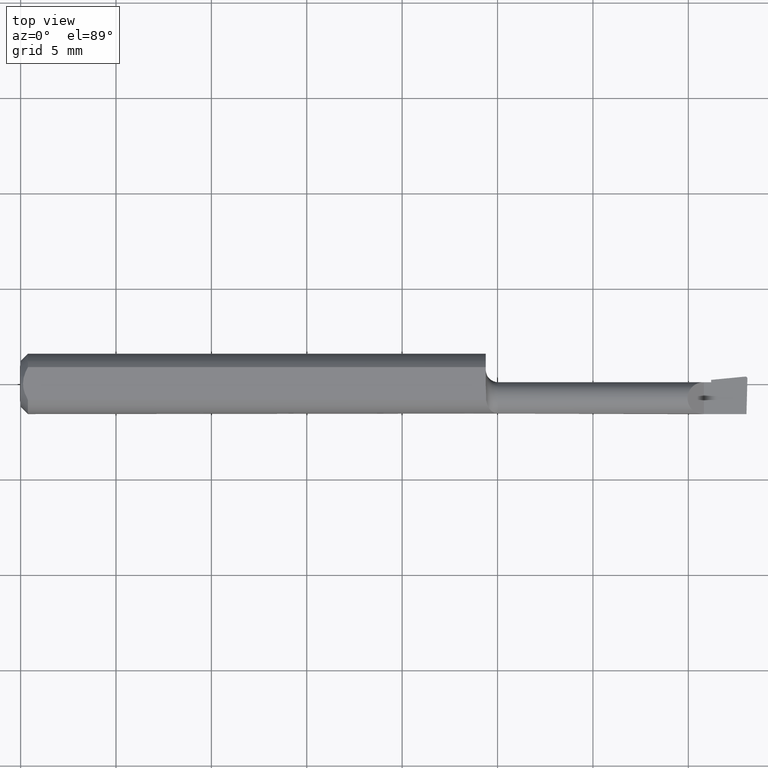
[diagram: clean part render]
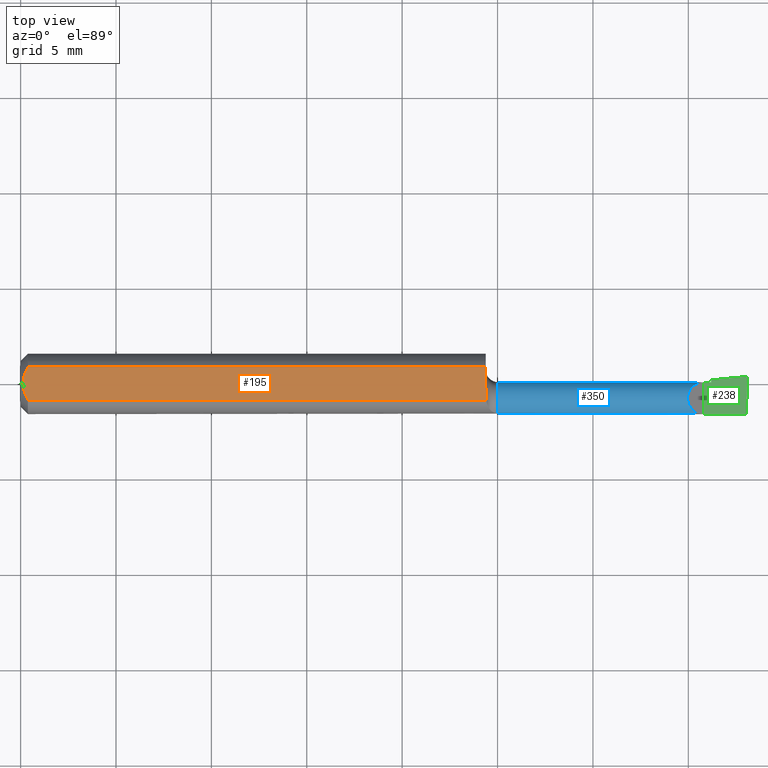
[diagram: same view with three faces highlighted in distinct colors, each labeled with its STEP entity id]
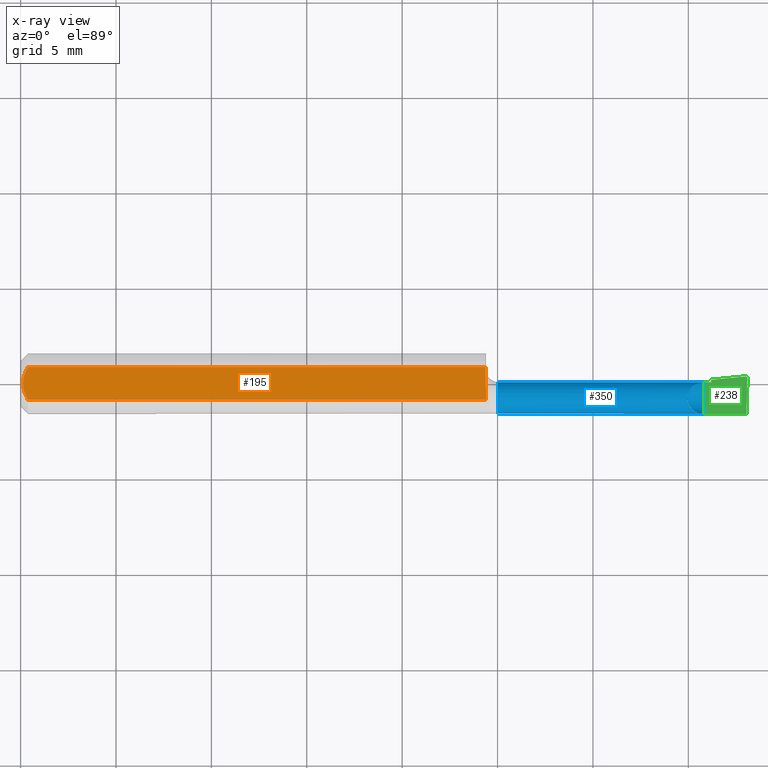
[diagram: x-ray of the same camera — body ghosted, the three highlighted faces saturated]
A machine part, top view with three faces highlighted in distinct colors.
The next image is the same camera in x-ray (body ghosted, the three faces saturated) — at least one of them is partly hidden behind the body in this view.
Their STEP definitions:

[orange] entity #195 — the highlighted planar face has unit normal (0, -0, -1).
#4 = ORIENTED_EDGE ( 'NONE', *, *, #272, .F. ) ;
#10 = VECTOR ( 'NONE', #125, 39.37007874015748143 ) ;
#25 = EDGE_CURVE ( 'NONE', #404, #233, #113, .T. ) ;
#26 = CARTESIAN_POINT ( 'NONE',  ( 0.9600000000000001865, -0.003555718954753302706, 0.05235000000000000070 ) ) ;
#27 = ORIENTED_EDGE ( 'NONE', *, *, #329, .F. ) ;
#37 = CARTESIAN_POINT ( 'NONE',  ( 0.9600000000000002975, -0.008611455327202432314, 0.05235000000000000070 ) ) ;
#38 = CARTESIAN_POINT ( 'NONE',  ( 0.9600000000000001865, 0.1123499999999999915, 0.05234999999999998682 ) ) ;
#49 = CARTESIAN_POINT ( 'NONE',  ( 0.006057557792978140489, -0.01187252718384441616, 0.05234999999999998682 ) ) ;
#75 = CARTESIAN_POINT ( 'NONE',  ( 0.0000000000000000000, 0.03386738844375223462, 0.05234999999999997988 ) ) ;
#113 = B_SPLINE_CURVE_WITH_KNOTS ( 'NONE', 3,
 ( #145, #237, #215, #49, #115, #345 ),
 .UNSPECIFIED., .F., .F.,
 ( 4, 2, 4 ),
 ( 0.002133667072902290657, 0.002585433046183636171, 0.003037199019464981685 ),
 .UNSPECIFIED. ) ;
#115 = CARTESIAN_POINT ( 'NONE',  ( 0.004999999999998879473, -0.005957634400466955450, 0.05235000000000000070 ) ) ;
#118 = EDGE_CURVE ( 'NONE', #583, #342, #186, .T. ) ;
#125 = DIRECTION ( 'NONE',  ( 1.000000000000000000, 0.0000000000000000000, 0.0000000000000000000 ) ) ;
#145 = CARTESIAN_POINT ( 'NONE',  ( 0.01500000000000185213, -0.03386738844380016850, 0.05235000000000000070 ) ) ;
#148 = CARTESIAN_POINT ( 'NONE',  ( 0.9607464907415638189, -0.02375524936241534685, 0.05234999999999997988 ) ) ;
#186 = B_SPLINE_CURVE_WITH_KNOTS ( 'NONE', 3,
 ( #26, #37, #493, #148, #247, #205 ),
 .UNSPECIFIED., .F., .F.,
 ( 4, 2, 4 ),
 ( 2.951825381264387685E-05, 0.0004145759864934283213, 0.0007996337191742129182 ),
 .UNSPECIFIED. ) ;
#195 = ADVANCED_FACE ( 'NONE', ( #383 ), #245, .F. ) ;
#205 = CARTESIAN_POINT ( 'NONE',  ( 0.9607701187518842278, -0.03386738844373782947, 0.05235000000000000070 ) ) ;
#206 = CARTESIAN_POINT ( 'NONE',  ( 1.500000000000000222, 0.1123499999999999915, 0.05234999999999998682 ) ) ;
#215 = CARTESIAN_POINT ( 'NONE',  ( 0.009678036133109307534, -0.02325481837211496039, 0.05235000000000000070 ) ) ;
#228 = ORIENTED_EDGE ( 'NONE', *, *, #460, .F. ) ;
#233 = VERTEX_POINT ( 'NONE', #435 ) ;
#237 = CARTESIAN_POINT ( 'NONE',  ( 0.01216137397042175820, -0.02864146636719541034, 0.05235000000000000070 ) ) ;
#245 = PLANE ( 'NONE',  #651 ) ;
#246 = VERTEX_POINT ( 'NONE', #307 ) ;
#247 = CARTESIAN_POINT ( 'NONE',  ( 0.9608648707886662255, -0.02880649294741972899, 0.05234999999999998682 ) ) ;
#252 = CARTESIAN_POINT ( 'NONE',  ( 0.0000000000000000000, -0.03386738844375222768, 0.05234999999999997988 ) ) ;
#256 = DIRECTION ( 'NONE',  ( 0.0000000000000000000, -7.598598113218357399E-17, -1.000000000000000000 ) ) ;
#257 = EDGE_CURVE ( 'NONE', #540, #583, #643, .T. ) ;
#272 = EDGE_CURVE ( 'NONE', #233, #246, #598, .T. ) ;
#282 = CARTESIAN_POINT ( 'NONE',  ( 0.01500000000000185213, -0.03386738844380016850, 0.05235000000000000070 ) ) ;
#289 = CARTESIAN_POINT ( 'NONE',  ( 0.006064493299689842180, 0.01189382783781397189, 0.05235000000000000070 ) ) ;
#298 = CARTESIAN_POINT ( 'NONE',  ( 0.004999999999999268051, 0.005945714695019511074, 0.05235000000000000070 ) ) ;
#307 = CARTESIAN_POINT ( 'NONE',  ( 0.01500000000000000465, 0.03386738844375223462, 0.05234999999999997988 ) ) ;
#318 = ORIENTED_EDGE ( 'NONE', *, *, #118, .F. ) ;
#327 = VECTOR ( 'NONE', #479, 39.37007874015748143 ) ;
#328 = VECTOR ( 'NONE', #522, 39.37007874015748143 ) ;
#329 = EDGE_CURVE ( 'NONE', #342, #404, #443, .T. ) ;
#330 = EDGE_LOOP ( 'NONE', ( #318, #455, #228, #4, #376, #27 ) ) ;
#341 = CARTESIAN_POINT ( 'NONE',  ( 0.009669996313769784607, 0.02323004575534281385, 0.05234999999999998682 ) ) ;
#342 = VERTEX_POINT ( 'NONE', #632 ) ;
#345 = CARTESIAN_POINT ( 'NONE',  ( 0.004999999999989931769, 7.898418181085889318E-16, 0.05235000000000000070 ) ) ;
#348 = LINE ( 'NONE', #75, #10 ) ;
#356 = CARTESIAN_POINT ( 'NONE',  ( 0.004999999999989931769, 7.898418181085889318E-16, 0.05235000000000000070 ) ) ;
#376 = ORIENTED_EDGE ( 'NONE', *, *, #25, .F. ) ;
#383 = FACE_OUTER_BOUND ( 'NONE', #330, .T. ) ;
#404 = VERTEX_POINT ( 'NONE', #282 ) ;
#415 = DIRECTION ( 'NONE',  ( 0.0000000000000000000, 1.000000000000000000, -7.598598113218357399E-17 ) ) ;
#435 = CARTESIAN_POINT ( 'NONE',  ( 0.004999999999989931769, 7.898418181085889318E-16, 0.05235000000000000070 ) ) ;
#443 = LINE ( 'NONE', #252, #327 ) ;
#455 = ORIENTED_EDGE ( 'NONE', *, *, #257, .F. ) ;
#460 = EDGE_CURVE ( 'NONE', #246, #540, #348, .T. ) ;
#479 = DIRECTION ( 'NONE',  ( -1.000000000000000000, -0.0000000000000000000, -0.0000000000000000000 ) ) ;
#493 = CARTESIAN_POINT ( 'NONE',  ( 0.9603031604743114125, -0.01365768250280467201, 0.05235000000000000764 ) ) ;
#505 = CARTESIAN_POINT ( 'NONE',  ( 0.9600000000000001865, 0.03386738844375224156, 0.05235000000000000070 ) ) ;
#522 = DIRECTION ( 'NONE',  ( -2.845674993400274571E-18, -1.000000000000000000, 7.598598113218357399E-17 ) ) ;
#540 = VERTEX_POINT ( 'NONE', #505 ) ;
#583 = VERTEX_POINT ( 'NONE', #619 ) ;
#597 = CARTESIAN_POINT ( 'NONE',  ( 0.01500000000000000465, 0.03386738844375223462, 0.05234999999999997988 ) ) ;
#598 = B_SPLINE_CURVE_WITH_KNOTS ( 'NONE', 3,
 ( #356, #298, #289, #341, #604, #597 ),
 .UNSPECIFIED., .F., .F.,
 ( 4, 2, 4 ),
 ( 0.003037199019464981685, 0.003488061124369676216, 0.003938923229274370746 ),
 .UNSPECIFIED. ) ;
#604 = CARTESIAN_POINT ( 'NONE',  ( 0.01218518006020415795, 0.02868529347538067639, 0.05235000000000000070 ) ) ;
#619 = CARTESIAN_POINT ( 'NONE',  ( 0.9600000000000001865, -0.003555718954753302706, 0.05235000000000000070 ) ) ;
#632 = CARTESIAN_POINT ( 'NONE',  ( 0.9607701187518842278, -0.03386738844373782947, 0.05235000000000000070 ) ) ;
#643 = LINE ( 'NONE', #38, #328 ) ;
#651 = AXIS2_PLACEMENT_3D ( 'NONE', #206, #256, #415 ) ;

[blue] entity #350 — the highlighted cylindrical surface (edge-blend (fillet) strip) has radius 0.8547 mm, axis along (-1, 0, -0).
#5 = CARTESIAN_POINT ( 'NONE',  ( 1.422586135878207481, -0.004617293032568454622, -0.02209164292227925458 ) ) ;
#11 = EDGE_CURVE ( 'NONE', #474, #414, #535, .T. ) ;
#17 = DIRECTION ( 'NONE',  ( 1.000000000000000000, -2.845674993400274571E-18, 0.0000000000000000000 ) ) ;
#43 = VERTEX_POINT ( 'NONE', #596 ) ;
#45 = EDGE_CURVE ( 'NONE', #43, #269, #500, .T. ) ;
#72 = CIRCLE ( 'NONE', #227, 0.03364999999999995078 ) ;
#73 = VERTEX_POINT ( 'NONE', #629 ) ;
#88 = CARTESIAN_POINT ( 'NONE',  ( 1.205000000000000071, -0.06092000000000005744, 0.01327690099383115746 ) ) ;
#97 = CARTESIAN_POINT ( 'NONE',  ( 0.9850000000000000977, -0.02999999999999999889, 0.0000000000000000000 ) ) ;
#100 = CARTESIAN_POINT ( 'NONE',  ( 1.422808130611181499, -0.006922796484203239294, -0.02449010367251407486 ) ) ;
#109 = CARTESIAN_POINT ( 'NONE',  ( 1.422734132366858306, -0.006115384616088397930, -0.02372927357351927585 ) ) ;
#120 = ORIENTED_EDGE ( 'NONE', *, *, #151, .T. ) ;
#121 = CARTESIAN_POINT ( 'NONE',  ( 1.396723099006168756, -0.06092000000000005744, 0.01327690099383110368 ) ) ;
#127 = EDGE_CURVE ( 'NONE', #412, #414, #72, .T. ) ;
#139 = DIRECTION ( 'NONE',  ( -2.845674993400274571E-18, -1.000000000000000000, 0.0000000000000000000 ) ) ;
#143 = CARTESIAN_POINT ( 'NONE',  ( 0.0000000000000000000, -0.02999999999999999542, 0.0000000000000000000 ) ) ;
#149 = CARTESIAN_POINT ( 'NONE',  ( 1.425000000000000266, -0.02999999999999999889, -0.03365000000000000629 ) ) ;
#151 = EDGE_CURVE ( 'NONE', #43, #269, #244, .T. ) ;
#159 = FACE_OUTER_BOUND ( 'NONE', #612, .T. ) ;
#168 = EDGE_CURVE ( 'NONE', #412, #601, #324, .T. ) ;
#176 = CARTESIAN_POINT ( 'NONE',  ( 1.496364186706980792, -0.06092000000000005744, -0.01327690099383115746 ) ) ;
#177 = ORIENTED_EDGE ( 'NONE', *, *, #372, .T. ) ;
#178 = EDGE_LOOP ( 'NONE', ( #588, #120 ) ) ;
#187 = CARTESIAN_POINT ( 'NONE',  ( 1.423528013792283220, -0.006115055335901219483, -0.02372896329039452662 ) ) ;
#202 = ORIENTED_EDGE ( 'NONE', *, *, #481, .F. ) ;
#226 = CARTESIAN_POINT ( 'NONE',  ( 0.9850000000000000977, -0.06092000000000009907, -0.01327690099383098052 ) ) ;
#227 = AXIS2_PLACEMENT_3D ( 'NONE', #97, #309, #346 ) ;
#236 = ORIENTED_EDGE ( 'NONE', *, *, #127, .F. ) ;
#240 = CYLINDRICAL_SURFACE ( 'NONE', #419, 0.03364999999999997160 ) ;
#244 = B_SPLINE_CURVE_WITH_KNOTS ( 'NONE', 3,
 ( #5, #423, #109, #100 ),
 .UNSPECIFIED., .F., .F.,
 ( 4, 4 ),
 ( 0.0000000000000000000, 1.000000000000000000 ),
 .UNSPECIFIED. ) ;
#254 = CARTESIAN_POINT ( 'NONE',  ( 1.363008094618844313, 0.003649999999999966639, 0.04699190538115514959 ) ) ;
#262 = DIRECTION ( 'NONE',  ( 0.0000000000000000000, -1.000000000000000000, 0.0000000000000000000 ) ) ;
#264 = LINE ( 'NONE', #532, #463 ) ;
#269 = VERTEX_POINT ( 'NONE', #489 ) ;
#271 =( BOUNDED_CURVE ( )  B_SPLINE_CURVE ( 3, ( #176, #566, #512, #333 ),
 .UNSPECIFIED., .F., .T. ) 
 B_SPLINE_CURVE_WITH_KNOTS ( ( 4, 4 ),
 ( 5.328025986651551804, 6.493234751460239096 ),
 .UNSPECIFIED. ) 
 CURVE ( )  GEOMETRIC_REPRESENTATION_ITEM ( )  RATIONAL_B_SPLINE_CURVE ( ( 1.000000000000000000, 0.8900217005663142444, 0.8900217005663142444, 1.000000000000000000 ) ) 
 REPRESENTATION_ITEM ( '' )  );
#280 = VERTEX_POINT ( 'NONE', #149 ) ;
#285 = VERTEX_POINT ( 'NONE', #316 ) ;
#291 = CARTESIAN_POINT ( 'NONE',  ( 1.409999999999999920, 0.003649999999999905057, 1.102182119232617911E-17 ) ) ;
#308 = LINE ( 'NONE', #504, #608 ) ;
#309 = DIRECTION ( 'NONE',  ( -1.000000000000000000, 2.845674993400274571E-18, -0.0000000000000000000 ) ) ;
#314 =( BOUNDED_CURVE ( )  B_SPLINE_CURVE ( 3, ( #121, #626, #254, #291 ),
 .UNSPECIFIED., .F., .T. ) 
 B_SPLINE_CURVE_WITH_KNOTS ( ( 4, 4 ),
 ( 5.117976542370897164, 7.853981633974482790 ),
 .UNSPECIFIED. ) 
 CURVE ( )  GEOMETRIC_REPRESENTATION_ITEM ( )  RATIONAL_B_SPLINE_CURVE ( ( 1.000000000000000000, 0.4676044288551151062, 0.4676044288551151062, 1.000000000000000000 ) ) 
 REPRESENTATION_ITEM ( '' )  );
#316 = CARTESIAN_POINT ( 'NONE',  ( 1.409999999999999920, 0.003649999999999905057, 1.102182119232617911E-17 ) ) ;
#324 = LINE ( 'NONE', #88, #582 ) ;
#333 = CARTESIAN_POINT ( 'NONE',  ( 1.494671495890090407, -0.02999999999999999889, -0.03365000000000000629 ) ) ;
#344 = ORIENTED_EDGE ( 'NONE', *, *, #168, .T. ) ;
#346 = DIRECTION ( 'NONE',  ( 0.0000000000000000000, -1.000000000000000000, 0.0000000000000000000 ) ) ;
#350 = ADVANCED_FACE ( 'NONE', ( #159, #451 ), #240, .T. ) ;
#372 = EDGE_CURVE ( 'NONE', #73, #280, #559, .T. ) ;
#378 = ORIENTED_EDGE ( 'NONE', *, *, #11, .T. ) ;
#382 = CARTESIAN_POINT ( 'NONE',  ( 0.9850000000000000977, -0.06092000000000009213, 0.01327690099383100134 ) ) ;
#384 = AXIS2_PLACEMENT_3D ( 'NONE', #454, #390, #262 ) ;
#390 = DIRECTION ( 'NONE',  ( -1.000000000000000000, 2.845674993400274571E-18, -0.0000000000000000000 ) ) ;
#407 = CARTESIAN_POINT ( 'NONE',  ( 1.422808130611181499, -0.006922796484203239294, -0.02449010367251407486 ) ) ;
#412 = VERTEX_POINT ( 'NONE', #382 ) ;
#414 = VERTEX_POINT ( 'NONE', #226 ) ;
#419 = AXIS2_PLACEMENT_3D ( 'NONE', #143, #551, #139 ) ;
#423 = CARTESIAN_POINT ( 'NONE',  ( 1.422660134122533782, -0.005345630279323979397, -0.02292848294241291857 ) ) ;
#451 = FACE_BOUND ( 'NONE', #178, .T. ) ;
#454 = CARTESIAN_POINT ( 'NONE',  ( 1.425000000000000266, -0.02999999999999999889, 0.0000000000000000000 ) ) ;
#462 = EDGE_CURVE ( 'NONE', #285, #73, #264, .T. ) ;
#463 = VECTOR ( 'NONE', #17, 39.37007874015748143 ) ;
#474 = VERTEX_POINT ( 'NONE', #558 ) ;
#476 = CARTESIAN_POINT ( 'NONE',  ( 1.422586135878207481, -0.004617293032568454622, -0.02209164292227925458 ) ) ;
#481 = EDGE_CURVE ( 'NONE', #474, #627, #271, .T. ) ;
#489 = CARTESIAN_POINT ( 'NONE',  ( 1.422808130611181499, -0.006922796484203239294, -0.02449010367251407486 ) ) ;
#498 = VECTOR ( 'NONE', #514, 39.37007874015748143 ) ;
#500 =( BOUNDED_CURVE ( )  B_SPLINE_CURVE ( 3, ( #476, #537, #187, #407 ),
 .UNSPECIFIED., .F., .T. ) 
 B_SPLINE_CURVE_WITH_KNOTS ( ( 4, 4 ),
 ( 3.087527693676615836, 3.186434404596850900 ),
 .UNSPECIFIED. ) 
 CURVE ( )  GEOMETRIC_REPRESENTATION_ITEM ( )  RATIONAL_B_SPLINE_CURVE ( ( 1.000000000000000000, 0.9991849546734640208, 0.9991849546734640208, 1.000000000000000000 ) ) 
 REPRESENTATION_ITEM ( '' )  );
#502 = ORIENTED_EDGE ( 'NONE', *, *, #593, .F. ) ;
#504 = CARTESIAN_POINT ( 'NONE',  ( 1.500000000000000222, -0.02999999999999999889, -0.03365000000000000629 ) ) ;
#512 = CARTESIAN_POINT ( 'NONE',  ( 1.494308349198229857, -0.04386801266094341595, -0.03364999999999997160 ) ) ;
#514 = DIRECTION ( 'NONE',  ( -1.000000000000000000, 2.845674993400274571E-18, -0.0000000000000000000 ) ) ;
#516 = CARTESIAN_POINT ( 'NONE',  ( 1.494671495890090407, -0.02999999999999999889, -0.03365000000000000629 ) ) ;
#518 = CARTESIAN_POINT ( 'NONE',  ( 1.205000000000000071, -0.06092000000000005744, -0.01327690099383115746 ) ) ;
#532 = CARTESIAN_POINT ( 'NONE',  ( 9.575696352794162704E-20, 0.003649999999999969241, 1.836970198721026976E-16 ) ) ;
#535 = LINE ( 'NONE', #518, #498 ) ;
#537 = CARTESIAN_POINT ( 'NONE',  ( 1.423453955186838593, -0.005345927311154258059, -0.02292882422404301720 ) ) ;
#551 = DIRECTION ( 'NONE',  ( -1.000000000000000000, 2.845674993400274571E-18, -0.0000000000000000000 ) ) ;
#554 = ORIENTED_EDGE ( 'NONE', *, *, #611, .T. ) ;
#558 = CARTESIAN_POINT ( 'NONE',  ( 1.496364186706980792, -0.06092000000000005744, -0.01327690099383115746 ) ) ;
#559 = CIRCLE ( 'NONE', #384, 0.03364999999999999936 ) ;
#566 = CARTESIAN_POINT ( 'NONE',  ( 1.494942300338901742, -0.05544825464842374763, -0.02601981188465941550 ) ) ;
#582 = VECTOR ( 'NONE', #592, 39.37007874015748143 ) ;
#588 = ORIENTED_EDGE ( 'NONE', *, *, #45, .F. ) ;
#592 = DIRECTION ( 'NONE',  ( 1.000000000000000000, -2.845674993400274571E-18, 0.0000000000000000000 ) ) ;
#593 = EDGE_CURVE ( 'NONE', #627, #280, #308, .T. ) ;
#596 = CARTESIAN_POINT ( 'NONE',  ( 1.422586135878207481, -0.004617293032568454622, -0.02209164292227925458 ) ) ;
#601 = VERTEX_POINT ( 'NONE', #615 ) ;
#608 = VECTOR ( 'NONE', #617, 39.37007874015748143 ) ;
#611 = EDGE_CURVE ( 'NONE', #601, #285, #314, .T. ) ;
#612 = EDGE_LOOP ( 'NONE', ( #202, #378, #236, #344, #554, #645, #177, #502 ) ) ;
#615 = CARTESIAN_POINT ( 'NONE',  ( 1.396723099006168756, -0.06092000000000005744, 0.01327690099383110368 ) ) ;
#617 = DIRECTION ( 'NONE',  ( -1.000000000000000000, 5.691349986800548372E-18, -0.0000000000000000000 ) ) ;
#626 = CARTESIAN_POINT ( 'NONE',  ( 1.353543612694568354, -0.04237893387051785976, 0.05645638730543057343 ) ) ;
#627 = VERTEX_POINT ( 'NONE', #516 ) ;
#629 = CARTESIAN_POINT ( 'NONE',  ( 1.425000000000000266, 0.003650000000000003068, 1.836970198721029194E-16 ) ) ;
#645 = ORIENTED_EDGE ( 'NONE', *, *, #462, .T. ) ;

[green] entity #238 — the highlighted planar face has unit normal (-0, 0, -1).
#17 = DIRECTION ( 'NONE',  ( 1.000000000000000000, -2.845674993400274571E-18, 0.0000000000000000000 ) ) ;
#29 = ORIENTED_EDGE ( 'NONE', *, *, #462, .F. ) ;
#35 = ORIENTED_EDGE ( 'NONE', *, *, #204, .T. ) ;
#56 = VECTOR ( 'NONE', #603, 39.37007874015748854 ) ;
#58 = LINE ( 'NONE', #587, #427 ) ;
#73 = VERTEX_POINT ( 'NONE', #629 ) ;
#82 = VERTEX_POINT ( 'NONE', #397 ) ;
#92 = CARTESIAN_POINT ( 'NONE',  ( 1.495883579913040773, 0.01524764111161444440, 2.129908061378830802E-18 ) ) ;
#94 = VERTEX_POINT ( 'NONE', #160 ) ;
#99 = EDGE_CURVE ( 'NONE', #381, #387, #212, .T. ) ;
#105 = DIRECTION ( 'NONE',  ( -1.000000000000000000, -0.0000000000000000000, -0.0000000000000000000 ) ) ;
#126 = ORIENTED_EDGE ( 'NONE', *, *, #223, .F. ) ;
#135 = VECTOR ( 'NONE', #560, 39.37007874015748143 ) ;
#137 = AXIS2_PLACEMENT_3D ( 'NONE', #286, #447, #450 ) ;
#150 = CARTESIAN_POINT ( 'NONE',  ( 1.496007920276510195, 0.01524764111161444786, 2.134256245050205639E-18 ) ) ;
#160 = CARTESIAN_POINT ( 'NONE',  ( 1.495634880358096996, 0.01522968678441272497, 4.859216828160406885E-19 ) ) ;
#161 = CARTESIAN_POINT ( 'NONE',  ( 1.495759144559530851, 0.01524165206609384010, 2.145146997116501947E-18 ) ) ;
#166 = CARTESIAN_POINT ( 'NONE',  ( 1.495634880358096996, 0.01522968678441272497, 4.859216828160406885E-19 ) ) ;
#167 = VECTOR ( 'NONE', #105, 39.37007874015748143 ) ;
#181 = EDGE_CURVE ( 'NONE', #325, #94, #445, .T. ) ;
#204 = EDGE_CURVE ( 'NONE', #387, #325, #429, .T. ) ;
#212 = LINE ( 'NONE', #364, #56 ) ;
#223 = EDGE_CURVE ( 'NONE', #381, #380, #320, .T. ) ;
#238 = ADVANCED_FACE ( 'NONE', ( #277 ), #446, .F. ) ;
#242 = ORIENTED_EDGE ( 'NONE', *, *, #557, .F. ) ;
#261 = EDGE_LOOP ( 'NONE', ( #386, #35, #278, #466, #568, #29, #242, #126 ) ) ;
#264 = LINE ( 'NONE', #532, #463 ) ;
#270 = CARTESIAN_POINT ( 'NONE',  ( 1.499880855614027064, 0.01110005946549043158, 2.701813490482481830E-20 ) ) ;
#277 = FACE_OUTER_BOUND ( 'NONE', #261, .T. ) ;
#278 = ORIENTED_EDGE ( 'NONE', *, *, #181, .T. ) ;
#285 = VERTEX_POINT ( 'NONE', #316 ) ;
#286 = CARTESIAN_POINT ( 'NONE',  ( 1.500000000000000222, -0.2500000000000000555, 0.0000000000000000000 ) ) ;
#290 = CARTESIAN_POINT ( 'NONE',  ( 1.498346190944516598, 0.01524764111161451378, 1.828325189654670006E-18 ) ) ;
#293 = DIRECTION ( 'NONE',  ( 2.845674993400274571E-18, 1.000000000000000000, -3.484946772081307763E-34 ) ) ;
#294 = CARTESIAN_POINT ( 'NONE',  ( 1.496007920276510195, 0.01524764111161444786, 2.134256245050205639E-18 ) ) ;
#305 = EDGE_CURVE ( 'NONE', #94, #82, #58, .T. ) ;
#316 = CARTESIAN_POINT ( 'NONE',  ( 1.409999999999999920, 0.003649999999999905057, 1.102182119232617911E-17 ) ) ;
#320 = LINE ( 'NONE', #360, #167 ) ;
#325 = VERTEX_POINT ( 'NONE', #609 ) ;
#336 = VECTOR ( 'NONE', #293, 39.37007874015748143 ) ;
#360 = CARTESIAN_POINT ( 'NONE',  ( 2.249639673992780117E-32, -0.06234999999999999570, 1.836970198721026976E-16 ) ) ;
#364 = CARTESIAN_POINT ( 'NONE',  ( 1.493048476612020226, -0.2498179679537755049, 8.513160866287434901E-19 ) ) ;
#365 = LINE ( 'NONE', #524, #135 ) ;
#380 = VERTEX_POINT ( 'NONE', #579 ) ;
#381 = VERTEX_POINT ( 'NONE', #456 ) ;
#386 = ORIENTED_EDGE ( 'NONE', *, *, #99, .T. ) ;
#387 = VERTEX_POINT ( 'NONE', #621 ) ;
#389 = CARTESIAN_POINT ( 'NONE',  ( 1.425000000000000266, -0.2500000000000000555, 9.184850993605122553E-18 ) ) ;
#394 = DIRECTION ( 'NONE',  ( -0.9953961983671800740, -0.09584575252021024228, 1.242092384877204037E-16 ) ) ;
#397 = CARTESIAN_POINT ( 'NONE',  ( 1.425000000000000266, 0.008428321385185622017, 1.835460370743176819E-16 ) ) ;
#410 = EDGE_CURVE ( 'NONE', #73, #82, #618, .T. ) ;
#427 = VECTOR ( 'NONE', #394, 39.37007874015748143 ) ;
#429 =( BOUNDED_CURVE ( )  B_SPLINE_CURVE ( 3, ( #270, #459, #290, #294 ),
 .UNSPECIFIED., .F., .T. ) 
 B_SPLINE_CURVE_WITH_KNOTS ( ( 4, 4 ),
 ( 1.953092279228616945, 3.511516179717928399 ),
 .UNSPECIFIED. ) 
 CURVE ( )  GEOMETRIC_REPRESENTATION_ITEM ( )  RATIONAL_B_SPLINE_CURVE ( ( 1.000000000000000000, 0.8076450242550283765, 0.8076450242550283765, 1.000000000000000000 ) ) 
 REPRESENTATION_ITEM ( '' )  );
#445 =( BOUNDED_CURVE ( )  B_SPLINE_CURVE ( 3, ( #150, #92, #161, #166 ),
 .UNSPECIFIED., .F., .T. ) 
 B_SPLINE_CURVE_WITH_KNOTS ( ( 4, 4 ),
 ( 3.511516179717928399, 3.604018710826510929 ),
 .UNSPECIFIED. ) 
 CURVE ( )  GEOMETRIC_REPRESENTATION_ITEM ( )  RATIONAL_B_SPLINE_CURVE ( ( 1.000000000000000000, 0.9992870672494010842, 0.9992870672494010842, 1.000000000000000000 ) ) 
 REPRESENTATION_ITEM ( '' )  );
#446 = PLANE ( 'NONE',  #137 ) ;
#447 = DIRECTION ( 'NONE',  ( -1.224646799147351728E-16, 0.0000000000000000000, -1.000000000000000000 ) ) ;
#450 = DIRECTION ( 'NONE',  ( -1.000000000000000000, 0.0000000000000000000, 1.224646799147351728E-16 ) ) ;
#456 = CARTESIAN_POINT ( 'NONE',  ( 1.497957498117606479, -0.06235000000000001652, 2.590631728435611737E-19 ) ) ;
#459 = CARTESIAN_POINT ( 'NONE',  ( 1.499944638786165907, 0.01353584053852250127, 1.632571786366718847E-18 ) ) ;
#462 = EDGE_CURVE ( 'NONE', #285, #73, #264, .T. ) ;
#463 = VECTOR ( 'NONE', #17, 39.37007874015748143 ) ;
#466 = ORIENTED_EDGE ( 'NONE', *, *, #305, .T. ) ;
#524 = CARTESIAN_POINT ( 'NONE',  ( 1.409999999999999920, -0.2500000000000000555, 1.102182119232617911E-17 ) ) ;
#532 = CARTESIAN_POINT ( 'NONE',  ( 9.575696352794162704E-20, 0.003649999999999969241, 1.836970198721026976E-16 ) ) ;
#557 = EDGE_CURVE ( 'NONE', #380, #285, #365, .T. ) ;
#560 = DIRECTION ( 'NONE',  ( -0.0000000000000000000, 1.000000000000000000, -0.0000000000000000000 ) ) ;
#568 = ORIENTED_EDGE ( 'NONE', *, *, #410, .F. ) ;
#579 = CARTESIAN_POINT ( 'NONE',  ( 1.409999999999999920, -0.06235000000000005121, 1.102182119232617911E-17 ) ) ;
#587 = CARTESIAN_POINT ( 'NONE',  ( 1.474655795189113938, 0.01320963064143656010, 3.103769929858640237E-18 ) ) ;
#603 = DIRECTION ( 'NONE',  ( 0.02617694830794628155, 0.9996573249755552615, -3.158139334232593261E-18 ) ) ;
#609 = CARTESIAN_POINT ( 'NONE',  ( 1.496007920276510195, 0.01524764111161444786, 2.134256245050205639E-18 ) ) ;
#618 = LINE ( 'NONE', #389, #336 ) ;
#621 = CARTESIAN_POINT ( 'NONE',  ( 1.499880855614027064, 0.01110005946549043158, 2.701813490482481830E-20 ) ) ;
#629 = CARTESIAN_POINT ( 'NONE',  ( 1.425000000000000266, 0.003650000000000003068, 1.836970198721029194E-16 ) ) ;